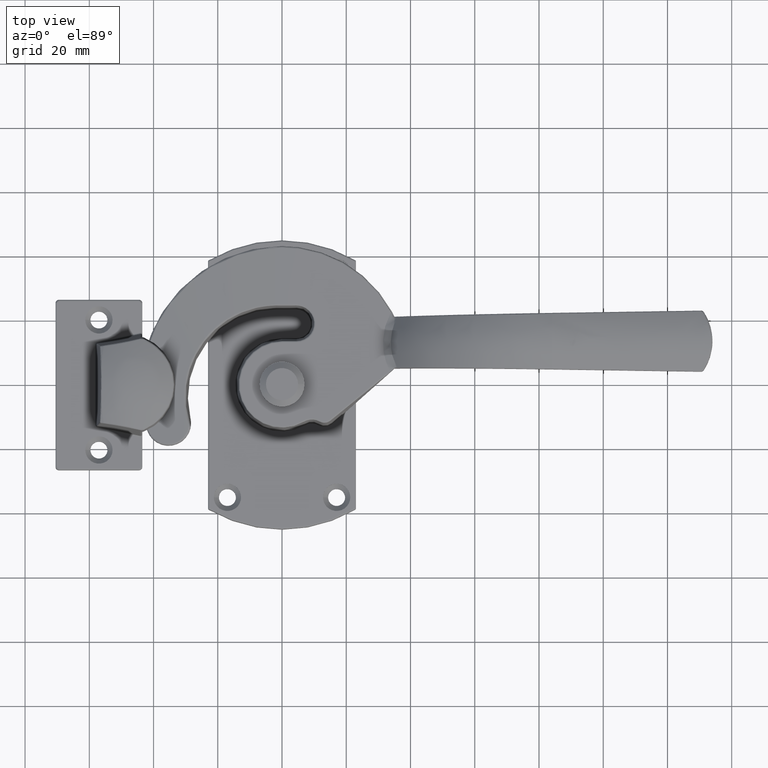
[diagram: clean part render]
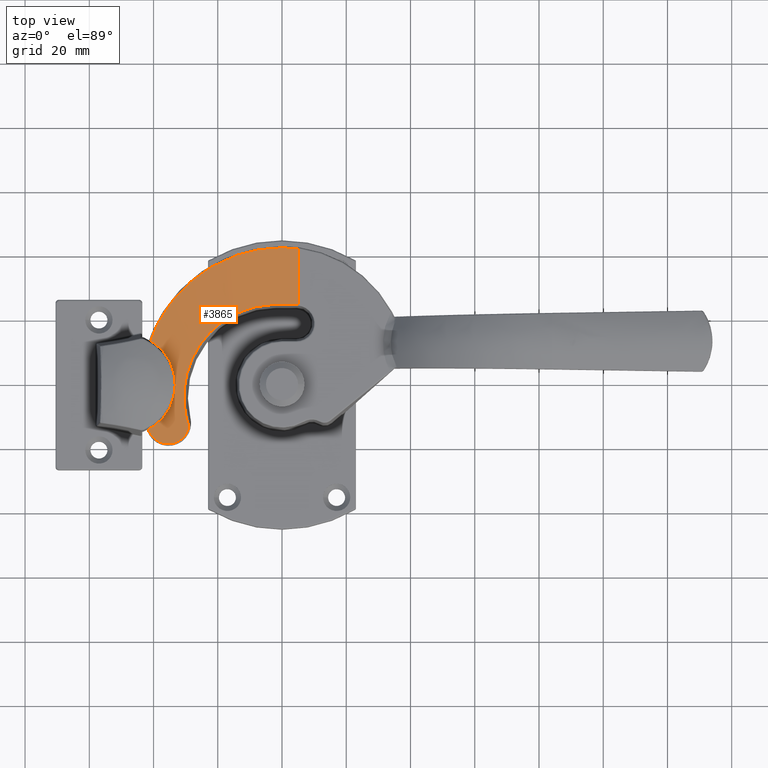
[diagram: same view with one face highlighted and labeled with its STEP entity id]
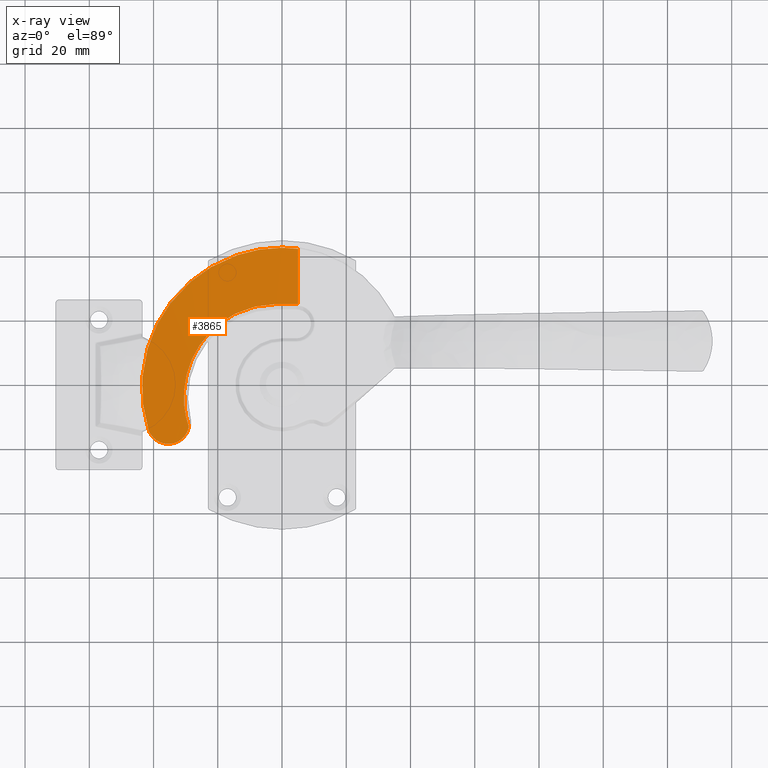
[diagram: x-ray of the same camera — body ghosted, the highlighted face saturated]
A machine part, top view. The second image highlights one B-rep face of the part: STEP entity #3865.
The next image is the same camera in x-ray: the body ghosted, the highlighted face saturated — about 0% of this face is hidden behind the body in this view.
In plain terms, the highlighted cylindrical surface (partial cylindrical patch) has radius 242.6 mm, axis along (-0, 1, 0).
Its self-contained STEP definition (entity closure, byte-faithful):
#37=ELLIPSE('',#4224,243.805012458727,242.6);
#88=B_SPLINE_CURVE_WITH_KNOTS('',3,(#6807,#6808,#6809,#6810,#6811,#6812,
#6813),.UNSPECIFIED.,.F.,.F.,(4,1,1,1,4),(-6.16548453880479,-4.60011285323423,
-3.03474116766368,-2.2520553248784,-0.700011472284715),.UNSPECIFIED.);
#90=B_SPLINE_CURVE_WITH_KNOTS('',3,(#6957,#6958,#6959,#6960,#6961,#6962,
#6963),.UNSPECIFIED.,.F.,.F.,(4,1,1,1,4),(2.37595907195096,2.6128952475186,
3.11295907296649,3.61302289841438,4.11308672386227),.UNSPECIFIED.);
#94=B_SPLINE_CURVE_WITH_KNOTS('',3,(#7089,#7090,#7091,#7092,#7093,#7094,
#7095,#7096,#7097,#7098,#7099,#7100,#7101,#7102,#7103,#7104),
 .UNSPECIFIED.,.F.,.F.,(4,3,3,3,3,4),(2.43393350212377E-15,1.16671374850428,
3.50014124551285,5.83356874252141,7.0002824910257,8.16699623952998),
 .UNSPECIFIED.);
#96=B_SPLINE_CURVE_WITH_KNOTS('',3,(#7132,#7133,#7134,#7135),
 .UNSPECIFIED.,.F.,.F.,(4,4),(0.,0.501463335573192),.UNSPECIFIED.);
#426=LINE('',#7267,#616);
#616=VECTOR('',#5140,17.2411224291478);
#775=CYLINDRICAL_SURFACE('',#4285,242.6);
#955=FACE_OUTER_BOUND('',#1236,.T.);
#1236=EDGE_LOOP('',(#3241,#3242,#3243,#3244,#3245,#3246,#3247));
#1518=CIRCLE('',#4227,5.96146653198491);
#1810=VERTEX_POINT('',#6804);
#1811=VERTEX_POINT('',#6806);
#1813=VERTEX_POINT('',#6849);
#1815=VERTEX_POINT('',#6874);
#1828=VERTEX_POINT('',#6956);
#1831=VERTEX_POINT('',#7067);
#1833=VERTEX_POINT('',#7125);
#2262=EDGE_CURVE('',#1810,#1811,#88,.T.);
#2265=EDGE_CURVE('',#1813,#1810,#37,.T.);
#2268=EDGE_CURVE('',#1815,#1813,#1518,.T.);
#2288=EDGE_CURVE('',#1811,#1828,#90,.T.);
#2294=EDGE_CURVE('',#1828,#1831,#94,.T.);
#2297=EDGE_CURVE('',#1831,#1833,#96,.T.);
#2318=EDGE_CURVE('',#1833,#1815,#426,.T.);
#3241=ORIENTED_EDGE('',*,*,#2268,.F.);
#3242=ORIENTED_EDGE('',*,*,#2318,.F.);
#3243=ORIENTED_EDGE('',*,*,#2297,.F.);
#3244=ORIENTED_EDGE('',*,*,#2294,.F.);
#3245=ORIENTED_EDGE('',*,*,#2288,.F.);
#3246=ORIENTED_EDGE('',*,*,#2262,.F.);
#3247=ORIENTED_EDGE('',*,*,#2265,.F.);
#3865=ADVANCED_FACE('',(#955),#775,.T.);
#4224=AXIS2_PLACEMENT_3D('',#6851,#5056,#5057);
#4227=AXIS2_PLACEMENT_3D('',#6876,#5062,#5063);
#4285=AXIS2_PLACEMENT_3D('',#7421,#5205,#5206);
#5056=DIRECTION('center_axis',(-7.10382408035372E-16,-0.995057474632803,
0.0993006655435293));
#5057=DIRECTION('ref_axis',(0.,0.0993006655435293,0.995057474632803));
#5062=DIRECTION('center_axis',(-0.00205777637439342,-0.0244833612016159,
0.999698119724482));
#5063=DIRECTION('ref_axis',(-0.000250413570956261,0.999700217585857,0.0244828971290893));
#5140=DIRECTION('',(0.,-1.,0.));
#5205=DIRECTION('center_axis',(0.,1.,0.));
#5206=DIRECTION('ref_axis',(0.,0.,-1.));
#6804=CARTESIAN_POINT('',(-1.93536309953926,24.9425989048101,9.90084688239245));
#6806=CARTESIAN_POINT('',(-29.0133331022587,-13.2235354335703,7.60377720973258));
#6807=CARTESIAN_POINT('Ctrl Pts',(-1.93536309953926,24.9425989048101,9.90084688239244));
#6808=CARTESIAN_POINT('Ctrl Pts',(-7.16188668872659,24.927682201508,9.75137178032444));
#6809=CARTESIAN_POINT('Ctrl Pts',(-17.5860669640871,21.9617924855617,9.0787771806184));
#6810=CARTESIAN_POINT('Ctrl Pts',(-26.7574444708577,12.0700039772997,7.93052735398164));
#6811=CARTESIAN_POINT('Ctrl Pts',(-31.1651458918163,-0.283802585522801,
7.29231377976242));
#6812=CARTESIAN_POINT('Ctrl Pts',(-30.6828788250936,-8.33136929869277,7.36759296147461));
#6813=CARTESIAN_POINT('Ctrl Pts',(-29.0133331022587,-13.2235354335703,7.60377720973258));
#6849=CARTESIAN_POINT('',(4.49896736885567,24.9524421494438,9.99948261754913));
#6851=CARTESIAN_POINT('Origin',(5.,0.742493781056019,-232.6));
#6874=CARTESIAN_POINT('',(5.00000000000002,24.9314570059566,10.));
#6876=CARTESIAN_POINT('Origin',(4.50046020097812,18.9927627602877,9.85352864570802));
#6956=CARTESIAN_POINT('',(-41.6292488466657,-13.9324324324324,5.47661193824925));
#6957=CARTESIAN_POINT('Ctrl Pts',(-29.0133275698013,-13.2235410612953,7.60377642480907));
#6958=CARTESIAN_POINT('Ctrl Pts',(-29.1621309203002,-13.9992386432772,7.58272139027534));
#6959=CARTESIAN_POINT('Ctrl Pts',(-30.0613527918872,-16.3339689937553,7.45538000243118));
#6960=CARTESIAN_POINT('Ctrl Pts',(-33.6151404652291,-18.9307207261274,6.92697190226189));
#6961=CARTESIAN_POINT('Ctrl Pts',(-38.8721683223663,-18.2626320356459,6.01655514204913));
#6962=CARTESIAN_POINT('Ctrl Pts',(-41.1335063412592,-15.5212526506892,5.57370715671812));
#6963=CARTESIAN_POINT('Ctrl Pts',(-41.6292488466658,-13.9324324324324,5.47661193824925));
#7067=CARTESIAN_POINT('',(-0.0103263114526292,42.5,9.94825629192382));
#7089=CARTESIAN_POINT('Ctrl Pts',(-41.6292488466657,-13.9324324324324,5.47661193824926));
#7090=CARTESIAN_POINT('Ctrl Pts',(-42.7858803951641,-10.2255088394662,5.25007620313544));
#7091=CARTESIAN_POINT('Ctrl Pts',(-43.4523534332811,-6.35585914737253,5.11232002059404));
#7092=CARTESIAN_POINT('Ctrl Pts',(-43.5824890013584,-2.4700653267169,5.08572056905919));
#7093=CARTESIAN_POINT('Ctrl Pts',(-43.8427601375132,5.30152231459442,5.03252166598945));
#7094=CARTESIAN_POINT('Ctrl Pts',(-41.9613450031898,13.1376864701536,5.44153070592118));
#7095=CARTESIAN_POINT('Ctrl Pts',(-38.2301649676359,19.929669071831,6.11722358655015));
#7096=CARTESIAN_POINT('Ctrl Pts',(-34.4989849320819,26.7216516735084,6.79291646717912));
#7097=CARTESIAN_POINT('Ctrl Pts',(-28.9138498210676,32.4694527213039,7.7116365447736));
#7098=CARTESIAN_POINT('Ctrl Pts',(-22.2427550667459,36.419727783121,8.46553527282428));
#7099=CARTESIAN_POINT('Ctrl Pts',(-18.9072076895851,38.3948653140295,8.84248463684962));
#7100=CARTESIAN_POINT('Ctrl Pts',(-15.3000121413692,39.9206213484434,9.17840910519041));
#7101=CARTESIAN_POINT('Ctrl Pts',(-11.5498326322814,40.9469050199358,9.4348384837263));
#7102=CARTESIAN_POINT('Ctrl Pts',(-7.79965312319354,41.9731886914281,9.69126786226218));
#7103=CARTESIAN_POINT('Ctrl Pts',(-3.90657283894169,42.499999999999,9.86777141526042));
#7104=CARTESIAN_POINT('Ctrl Pts',(-0.010326311452642,42.5,9.94825629192384));
#7125=CARTESIAN_POINT('',(4.99999999999999,42.1725794351044,10.));
#7132=CARTESIAN_POINT('Ctrl Pts',(-0.0103263114471111,42.5,9.94825629192394));
#7133=CARTESIAN_POINT('Ctrl Pts',(1.66431306123098,42.5000000000002,9.98284936564621));
#7134=CARTESIAN_POINT('Ctrl Pts',(3.33930736982279,42.3905638923778,10.));
#7135=CARTESIAN_POINT('Ctrl Pts',(4.99999999999999,42.1725794351044,10.));
#7267=CARTESIAN_POINT('',(5.,14.5,10.));
#7421=CARTESIAN_POINT('Origin',(5.,14.5,-232.6));